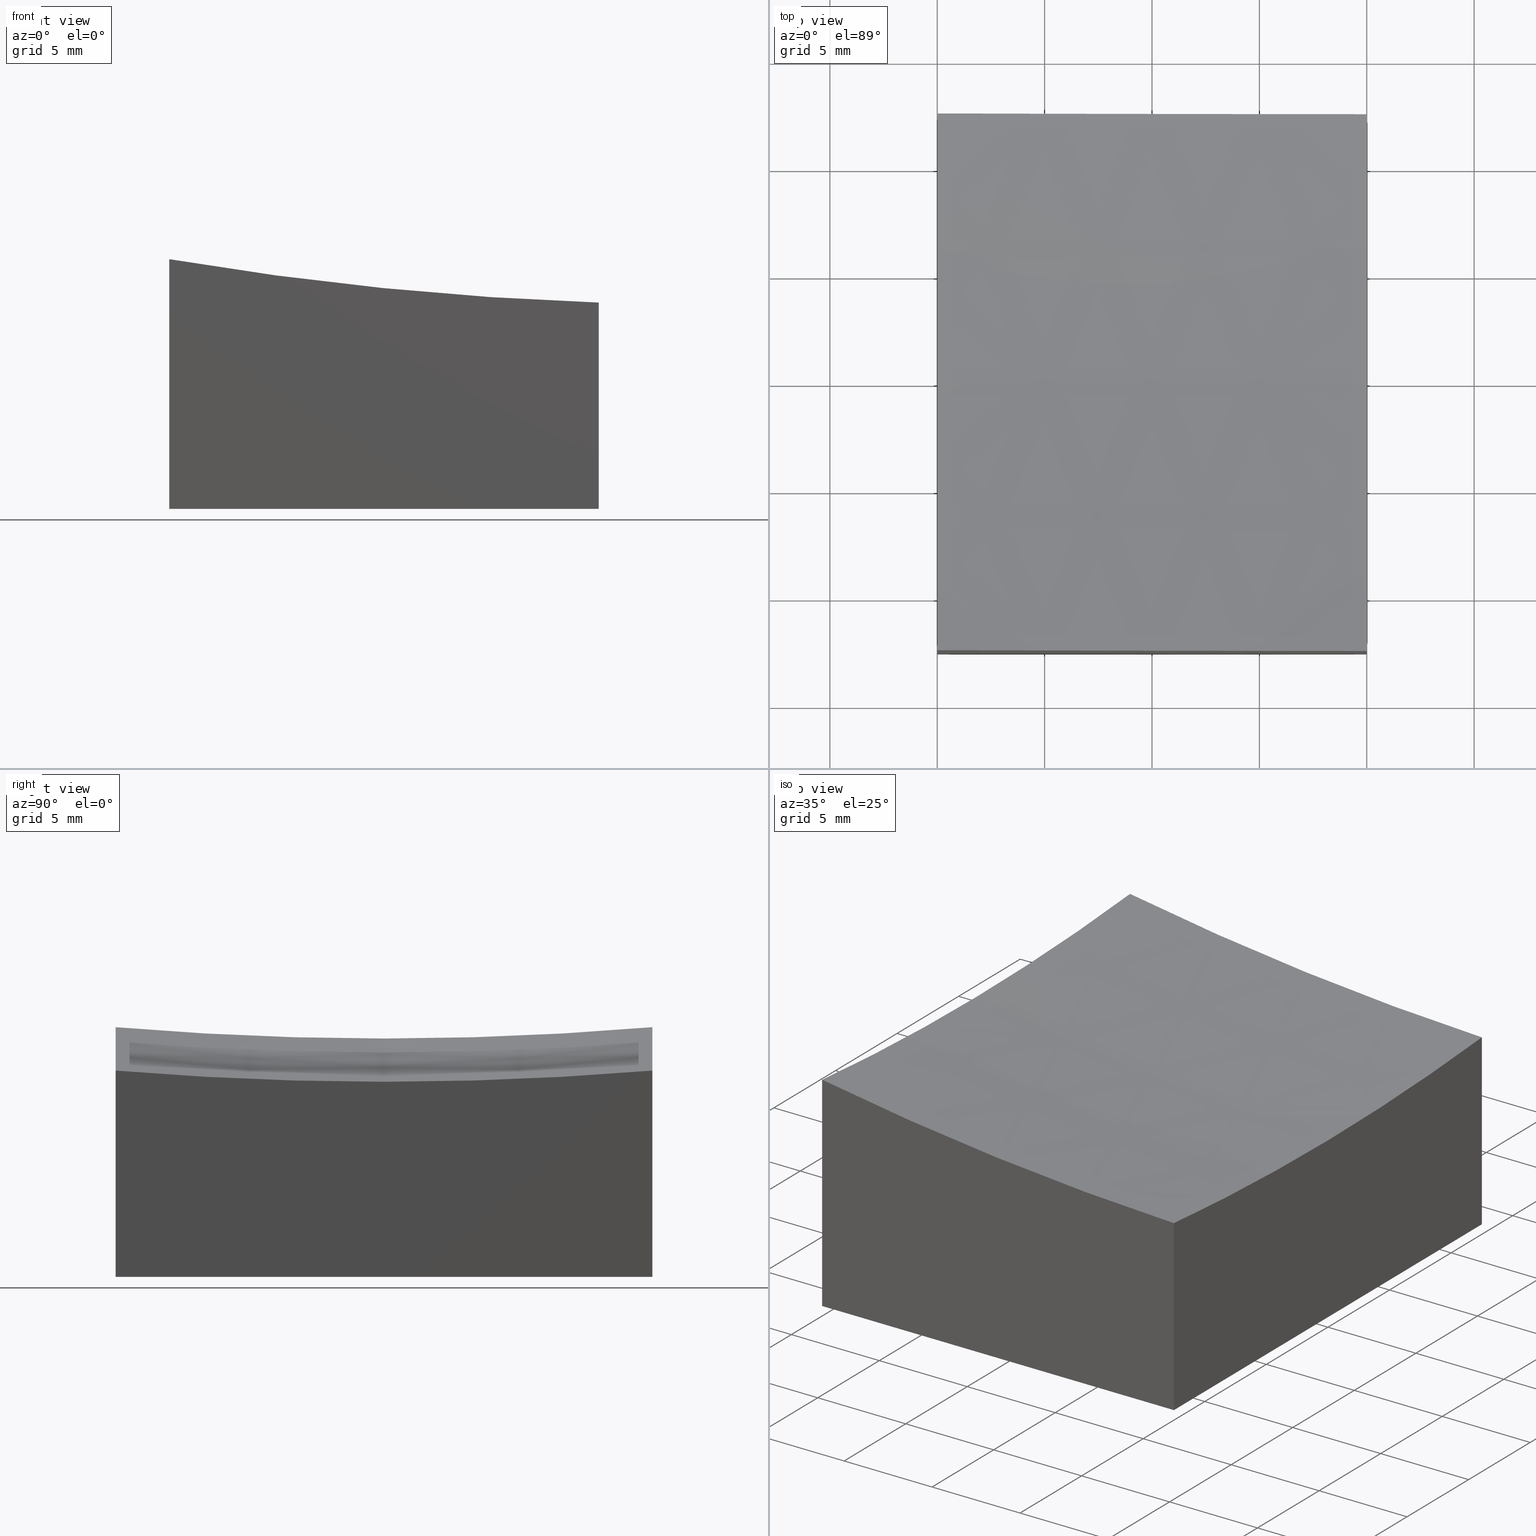
[diagram: canonical four-view strip — front | top / right | iso, engineering-drawing reading convention]
A machine part, canonical four-view strip (front | top / right | iso — engineering-drawing reading convention). The complete STEP part file that produces these views, byte-faithful:
ISO-10303-21;
HEADER;
FILE_DESCRIPTION (( 'STEP AP203' ),
    '1' );
FILE_NAME ('270636.step',
    '2024-12-24T02:21:21',
    ( '' ),
    ( '' ),
    'SwSTEP 2.0',
    'SolidWorks 2020',
    '' );
FILE_SCHEMA (( 'CONFIG_CONTROL_DESIGN' ));
ENDSEC;

DATA;
#1 = CARTESIAN_POINT ( 'NONE',  ( 10.00000000000000178, 12.50000000000000000, -10.00000000000000000 ) ) ;
#2 = EDGE_CURVE ( 'NONE', #259, #260, #177, .T. ) ;
#3 = COORDINATED_UNIVERSAL_TIME_OFFSET ( 8, 0, .AHEAD. ) ;
#4 = DIRECTION ( 'NONE',  ( 1.000000000000000000, 0.000000000000000000, 0.000000000000000000 ) ) ;
#5 = SHAPE_DEFINITION_REPRESENTATION ( #112, #170 ) ;
#6 = EDGE_CURVE ( 'NONE', #89, #10, #127, .T. ) ;
#7 = CARTESIAN_POINT ( 'NONE',  ( 10.00000000000000178, -12.50000000000000000, 10.00000000000000000 ) ) ;
#8 = CC_DESIGN_APPROVAL ( #105, ( #49 ) ) ;
#9 = CC_DESIGN_PERSON_AND_ORGANIZATION_ASSIGNMENT ( #62, #24, ( #263 ) ) ;
#10 = VERTEX_POINT ( 'NONE', #186 ) ;
#11 = CLOSED_SHELL ( 'NONE', ( #238, #257, #138, #275, #201, #253, #108 ) ) ;
#12 = PERSON_AND_ORGANIZATION_ROLE ( 'design_owner' ) ;
#13 = EDGE_CURVE ( 'NONE', #243, #151, #273, .T. ) ;
#14 = DIRECTION ( 'NONE',  ( 1.000000000000000000, 1.734723475976807094E-16, -0.000000000000000000 ) ) ;
#15 = DIRECTION ( 'NONE',  ( 1.734723475976807094E-16, -1.000000000000000000, 0.000000000000000000 ) ) ;
#16 = COORDINATED_UNIVERSAL_TIME_OFFSET ( 8, 0, .AHEAD. ) ;
#17 = LINE ( 'NONE', #1, #175 ) ;
#18 = PERSON_AND_ORGANIZATION ( #204, #225 ) ;
#19 = CC_DESIGN_DATE_AND_TIME_ASSIGNMENT ( #83, #145, ( #263 ) ) ;
#20 = DIRECTION ( 'NONE',  ( 1.734723475976807094E-16, -1.000000000000000000, 0.000000000000000000 ) ) ;
#21 = APPROVAL_STATUS ( 'not_yet_approved' ) ;
#22 = CARTESIAN_POINT ( 'NONE',  ( -9.999999999999998224, 12.49999999999999645, -10.00000000000000000 ) ) ;
#23 = LINE ( 'NONE', #53, #196 ) ;
#24 = PERSON_AND_ORGANIZATION_ROLE ( 'classification_officer' ) ;
#25 = APPROVAL_ROLE ( '' ) ;
#26 = EDGE_LOOP ( 'NONE', ( #246, #91, #72, #104 ) ) ;
#27 = ORIENTED_EDGE ( 'NONE', *, *, #81, .F. ) ;
#28 = ORIENTED_EDGE ( 'NONE', *, *, #13, .F. ) ;
#29 = AXIS2_PLACEMENT_3D ( 'NONE', #118, #143, #206 ) ;
#30 = EDGE_LOOP ( 'NONE', ( #85, #68, #195, #218, #159 ) ) ;
#31 = VERTEX_POINT ( 'NONE', #200 ) ;
#32 = CARTESIAN_POINT ( 'NONE',  ( 10.00000000000000178, -12.50000000000000000, 10.00000000000000000 ) ) ;
#33 = CARTESIAN_POINT ( 'NONE',  ( 10.00000000000000178, 0.000000000000000000, 149.0000000000000000 ) ) ;
#34 = DIRECTION ( 'NONE',  ( 1.000000000000000000, 0.000000000000000000, 0.000000000000000000 ) ) ;
#35 = CARTESIAN_POINT ( 'NONE',  ( 10.00000000000000178, -12.50000000000000000, -10.00000000000000000 ) ) ;
#36 = EDGE_CURVE ( 'NONE', #89, #259, #84, .T. ) ;
#37 = CALENDAR_DATE ( 2024, 24, 12 ) ;
#38 = CARTESIAN_POINT ( 'NONE',  ( -9.999999999999998224, 12.49999999999999645, 10.00000000000000000 ) ) ;
#39 = DIRECTION ( 'NONE',  ( 0.000000000000000000, 0.000000000000000000, -1.000000000000000000 ) ) ;
#40 = DIRECTION ( 'NONE',  ( 0.000000000000000000, -0.000000000000000000, 1.000000000000000000 ) ) ;
#41 = CC_DESIGN_PERSON_AND_ORGANIZATION_ASSIGNMENT ( #142, #115, ( #49 ) ) ;
#42 = COORDINATED_UNIVERSAL_TIME_OFFSET ( 8, 0, .AHEAD. ) ;
#43 = APPROVAL_DATE_TIME ( #232, #239 ) ;
#44 = DIRECTION ( 'NONE',  ( 0.000000000000000000, 0.000000000000000000, -1.000000000000000000 ) ) ;
#45 = ORIENTED_EDGE ( 'NONE', *, *, #54, .F. ) ;
#46 = CC_DESIGN_DATE_AND_TIME_ASSIGNMENT ( #268, #230, ( #49 ) ) ;
#47 = APPROVAL_PERSON_ORGANIZATION ( #71, #66, #157 ) ;
#48 =( NAMED_UNIT ( * ) SI_UNIT ( $, .STERADIAN. ) SOLID_ANGLE_UNIT ( ) );
#49 = PRODUCT_DEFINITION ( 'δ֪', '', #154, #125 ) ;
#50 = COORDINATED_UNIVERSAL_TIME_OFFSET ( 8, 0, .AHEAD. ) ;
#51 = DIRECTION ( 'NONE',  ( -1.000000000000000000, 0.000000000000000000, 0.000000000000000000 ) ) ;
#52 = DIRECTION ( 'NONE',  ( -1.000000000000000000, 0.000000000000000000, 0.000000000000000000 ) ) ;
#53 = CARTESIAN_POINT ( 'NONE',  ( 10.00000000000000178, 12.50000000000000000, 10.00000000000000000 ) ) ;
#54 = EDGE_CURVE ( 'NONE', #156, #243, #17, .T. ) ;
#55 = DIRECTION ( 'NONE',  ( -1.000000000000000000, 0.000000000000000000, 0.000000000000000000 ) ) ;
#56 = CALENDAR_DATE ( 2024, 24, 12 ) ;
#57 = CARTESIAN_POINT ( 'NONE',  ( 10.00000000000000178, 12.50000000000000000, -0.3946116832866386481 ) ) ;
#58 = VECTOR ( 'NONE', #120, 1000.000000000000000 ) ;
#59 = CARTESIAN_POINT ( 'NONE',  ( -9.999999999999998224, 0.000000000000000000, 149.0000000000000000 ) ) ;
#60 = CC_DESIGN_PERSON_AND_ORGANIZATION_ASSIGNMENT ( #256, #121, ( #154 ) ) ;
#61 = FACE_OUTER_BOUND ( 'NONE', #30, .T. ) ;
#62 = PERSON_AND_ORGANIZATION ( #204, #225 ) ;
#63 = PERSON_AND_ORGANIZATION ( #204, #225 ) ;
#64 = VECTOR ( 'NONE', #160, 1000.000000000000000 ) ;
#65 = CC_DESIGN_APPROVAL ( #66, ( #154 ) ) ;
#66 = APPROVAL ( #21, 'δָ��' ) ;
#67 = ORIENTED_EDGE ( 'NONE', *, *, #36, .F. ) ;
#68 = ORIENTED_EDGE ( 'NONE', *, *, #2, .T. ) ;
#69 = PRODUCT_RELATED_PRODUCT_CATEGORY ( 'detail', '', ( #240 ) ) ;
#70 = EDGE_LOOP ( 'NONE', ( #236, #269, #220, #126 ) ) ;
#71 = PERSON_AND_ORGANIZATION ( #204, #225 ) ;
#72 = ORIENTED_EDGE ( 'NONE', *, *, #148, .F. ) ;
#73 = CARTESIAN_POINT ( 'NONE',  ( -10.00000000000000000, -12.50000000000000355, 1.627173468105036491 ) ) ;
#74 = DIRECTION ( 'NONE',  ( -0.000000000000000000, -0.000000000000000000, -1.000000000000000000 ) ) ;
#75 = VECTOR ( 'NONE', #164, 1000.000000000000000 ) ;
#76 = CARTESIAN_POINT ( 'NONE',  ( 0.000000000000000000, 0.000000000000000000, 0.000000000000000000 ) ) ;
#77 = CARTESIAN_POINT ( 'NONE',  ( -9.999999999999998224, -12.50000000000000355, -10.00000000000000000 ) ) ;
#78 = APPLICATION_PROTOCOL_DEFINITION ( 'international standard', 'config_control_design', 1994, #153 ) ;
#79 = DIRECTION ( 'NONE',  ( -1.734723475976807094E-16, 1.000000000000000000, 0.000000000000000000 ) ) ;
#80 = FACE_OUTER_BOUND ( 'NONE', #26, .T. ) ;
#81 = EDGE_CURVE ( 'NONE', #10, #156, #226, .T. ) ;
#82 = SECURITY_CLASSIFICATION_LEVEL ( 'unclassified' ) ;
#83 = DATE_AND_TIME ( #171, #132 ) ;
#84 = CIRCLE ( 'NONE', #144, 149.4782592887674753 ) ;
#85 = ORIENTED_EDGE ( 'NONE', *, *, #264, .F. ) ;
#86 = APPLICATION_CONTEXT ( 'configuration controlled 3d designs of mechanical parts and assemblies' ) ;
#87 = CC_DESIGN_PERSON_AND_ORGANIZATION_ASSIGNMENT ( #63, #216, ( #154 ) ) ;
#88 = CC_DESIGN_SECURITY_CLASSIFICATION ( #263, ( #154 ) ) ;
#89 = VERTEX_POINT ( 'NONE', #189 ) ;
#90 = APPLICATION_PROTOCOL_DEFINITION ( 'international standard', 'config_control_design', 1994, #86 ) ;
#91 = ORIENTED_EDGE ( 'NONE', *, *, #194, .T. ) ;
#92 = DATE_AND_TIME ( #56, #102 ) ;
#93 = FACE_OUTER_BOUND ( 'NONE', #70, .T. ) ;
#94 = CARTESIAN_POINT ( 'NONE',  ( -9.999999999999998224, -12.50000000000000355, 10.00000000000000000 ) ) ;
#95 = DIRECTION ( 'NONE',  ( -1.000000000000000000, -1.740778375628798863E-16, 0.000000000000000000 ) ) ;
#96 = AXIS2_PLACEMENT_3D ( 'NONE', #59, #146, #39 ) ;
#97 = CARTESIAN_POINT ( 'NONE',  ( 10.00000000000000178, 12.50000000000000000, -10.00000000000000000 ) ) ;
#98 = SPHERICAL_SURFACE ( 'NONE', #272, 150.0000000000000284 ) ;
#99 = EDGE_CURVE ( 'NONE', #31, #89, #101, .T. ) ;
#100 = DIRECTION ( 'NONE',  ( -0.000000000000000000, -0.000000000000000000, -1.000000000000000000 ) ) ;
#101 = CIRCLE ( 'NONE', #217, 149.9166435056495175 ) ;
#102 = LOCAL_TIME ( 10, 21, 21.00000000000000000, #16 ) ;
#103 = EDGE_CURVE ( 'NONE', #174, #176, #191, .T. ) ;
#104 = ORIENTED_EDGE ( 'NONE', *, *, #103, .F. ) ;
#105 = APPROVAL ( #224, 'δָ��' ) ;
#106 = EDGE_LOOP ( 'NONE', ( #28, #45, #27, #133 ) ) ;
#107 = AXIS2_PLACEMENT_3D ( 'NONE', #183, #15, #249 ) ;
#108 = ADVANCED_FACE ( 'NONE', ( #122 ), #98, .F. ) ;
#109 = ORIENTED_EDGE ( 'NONE', *, *, #6, .T. ) ;
#110 = ORIENTED_EDGE ( 'NONE', *, *, #36, .T. ) ;
#111 = AXIS2_PLACEMENT_3D ( 'NONE', #94, #248, #117 ) ;
#112 = PRODUCT_DEFINITION_SHAPE ( 'NONE', 'NONE',  #49 ) ;
#113 = DATE_AND_TIME ( #136, #129 ) ;
#114 = DIRECTION ( 'NONE',  ( -0.000000000000000000, -0.000000000000000000, -1.000000000000000000 ) ) ;
#115 = PERSON_AND_ORGANIZATION_ROLE ( 'creator' ) ;
#116 = FACE_OUTER_BOUND ( 'NONE', #221, .T. ) ;
#117 = DIRECTION ( 'NONE',  ( 0.000000000000000000, 0.000000000000000000, -1.000000000000000000 ) ) ;
#118 = CARTESIAN_POINT ( 'NONE',  ( 15.00000000000001954, 0.000000000000000000, 149.0000000000000000 ) ) ;
#119 = AXIS2_PLACEMENT_3D ( 'NONE', #227, #79, #203 ) ;
#120 = DIRECTION ( 'NONE',  ( 0.000000000000000000, 1.000000000000000000, 0.000000000000000000 ) ) ;
#121 = PERSON_AND_ORGANIZATION_ROLE ( 'creator' ) ;
#122 = FACE_OUTER_BOUND ( 'NONE', #193, .T. ) ;
#123 = PLANE ( 'NONE',  #124 ) ;
#124 = AXIS2_PLACEMENT_3D ( 'NONE', #234, #40, #255 ) ;
#125 = DESIGN_CONTEXT ( 'detailed design', #86, 'design' ) ;
#126 = ORIENTED_EDGE ( 'NONE', *, *, #54, .T. ) ;
#127 = LINE ( 'NONE', #7, #266 ) ;
#128 = AXIS2_PLACEMENT_3D ( 'NONE', #33, #210, #165 ) ;
#129 = LOCAL_TIME ( 10, 21, 21.00000000000000000, #50 ) ;
#130 = ORIENTED_EDGE ( 'NONE', *, *, #6, .F. ) ;
#131 =( GEOMETRIC_REPRESENTATION_CONTEXT ( 3 ) GLOBAL_UNCERTAINTY_ASSIGNED_CONTEXT ( ( #162 ) ) GLOBAL_UNIT_ASSIGNED_CONTEXT ( ( #205, #276, #48 ) ) REPRESENTATION_CONTEXT ( 'NONE', 'WORKASPACE' ) );
#132 = LOCAL_TIME ( 10, 21, 21.00000000000000000, #3 ) ;
#133 = ORIENTED_EDGE ( 'NONE', *, *, #261, .F. ) ;
#134 = PLANE ( 'NONE',  #111 ) ;
#135 = ORIENTED_EDGE ( 'NONE', *, *, #81, .T. ) ;
#136 = CALENDAR_DATE ( 2024, 24, 12 ) ;
#137 = DIRECTION ( 'NONE',  ( 1.000000000000000000, 1.734723475976807094E-16, 0.000000000000000000 ) ) ;
#138 = ADVANCED_FACE ( 'NONE', ( #116 ), #141, .F. ) ;
#139 = CARTESIAN_POINT ( 'NONE',  ( 15.00000000000001954, 0.000000000000000000, 149.0000000000000000 ) ) ;
#140 = DIRECTION ( 'NONE',  ( 0.000000000000000000, 0.000000000000000000, 1.000000000000000000 ) ) ;
#141 = PLANE ( 'NONE',  #119 ) ;
#142 = PERSON_AND_ORGANIZATION ( #204, #225 ) ;
#143 = DIRECTION ( 'NONE',  ( 0.000000000000000000, -1.000000000000000000, 0.000000000000000000 ) ) ;
#144 = AXIS2_PLACEMENT_3D ( 'NONE', #252, #181, #95 ) ;
#145 = DATE_TIME_ROLE ( 'classification_date' ) ;
#146 = DIRECTION ( 'NONE',  ( 1.000000000000000000, 0.000000000000000000, 0.000000000000000000 ) ) ;
#147 = FACE_OUTER_BOUND ( 'NONE', #106, .T. ) ;
#148 = EDGE_CURVE ( 'NONE', #176, #31, #190, .T. ) ;
#149 = CIRCLE ( 'NONE', #29, 150.0000000000000284 ) ;
#150 = CALENDAR_DATE ( 2024, 24, 12 ) ;
#151 = VERTEX_POINT ( 'NONE', #229 ) ;
#152 = ORIENTED_EDGE ( 'NONE', *, *, #99, .F. ) ;
#153 = APPLICATION_CONTEXT ( 'configuration controlled 3d designs of mechanical parts and assemblies' ) ;
#154 = PRODUCT_DEFINITION_FORMATION_WITH_SPECIFIED_SOURCE ( '�κ�', '', #240, .NOT_KNOWN. ) ;
#155 = ORIENTED_EDGE ( 'NONE', *, *, #148, .T. ) ;
#156 = VERTEX_POINT ( 'NONE', #97 ) ;
#157 = APPROVAL_ROLE ( '' ) ;
#158 = EDGE_CURVE ( 'NONE', #174, #243, #188, .T. ) ;
#159 = ORIENTED_EDGE ( 'NONE', *, *, #13, .T. ) ;
#160 = DIRECTION ( 'NONE',  ( -0.000000000000000000, -0.000000000000000000, -1.000000000000000000 ) ) ;
#161 = CARTESIAN_POINT ( 'NONE',  ( -9.999999999999996447, 12.49999999999999645, 1.627173468105036491 ) ) ;
#162 = UNCERTAINTY_MEASURE_WITH_UNIT (LENGTH_MEASURE( 1.000000000000000082E-05 ), #205, 'distance_accuracy_value', 'NONE');
#163 = CARTESIAN_POINT ( 'NONE',  ( 10.00000000000000178, -12.50000000000000000, -10.00000000000000000 ) ) ;
#164 = DIRECTION ( 'NONE',  ( -0.000000000000000000, -1.000000000000000000, -0.000000000000000000 ) ) ;
#165 = DIRECTION ( 'NONE',  ( 0.000000000000000000, 0.000000000000000000, 1.000000000000000000 ) ) ;
#166 = DIRECTION ( 'NONE',  ( 0.000000000000000000, 1.000000000000000000, -0.000000000000000000 ) ) ;
#167 = AXIS2_PLACEMENT_3D ( 'NONE', #231, #20, #137 ) ;
#168 = APPROVAL_STATUS ( 'not_yet_approved' ) ;
#169 = CARTESIAN_POINT ( 'NONE',  ( 15.00000000000001954, 0.000000000000000000, 149.0000000000000000 ) ) ;
#170 = ADVANCED_BREP_SHAPE_REPRESENTATION ( '270636', ( #179, #262 ), #131 ) ;
#171 = CALENDAR_DATE ( 2024, 24, 12 ) ;
#172 = LOCAL_TIME ( 10, 21, 21.00000000000000000, #42 ) ;
#173 = ORIENTED_EDGE ( 'NONE', *, *, #211, .F. ) ;
#174 = VERTEX_POINT ( 'NONE', #161 ) ;
#175 = VECTOR ( 'NONE', #251, 1000.000000000000000 ) ;
#176 = VERTEX_POINT ( 'NONE', #57 ) ;
#177 = CIRCLE ( 'NONE', #222, 147.9019945774904272 ) ;
#178 = APPROVAL_DATE_TIME ( #92, #105 ) ;
#179 = MANIFOLD_SOLID_BREP ( '�г�-��ת8', #11 ) ;
#180 = LINE ( 'NONE', #270, #64 ) ;
#181 = DIRECTION ( 'NONE',  ( -1.734723475976807094E-16, 1.000000000000000000, 0.000000000000000000 ) ) ;
#182 = VECTOR ( 'NONE', #14, 1000.000000000000000 ) ;
#183 = CARTESIAN_POINT ( 'NONE',  ( 15.00000000000001776, 12.50000000000000178, 149.0000000000000000 ) ) ;
#184 = LOCAL_TIME ( 10, 21, 21.00000000000000000, #202 ) ;
#185 = LINE ( 'NONE', #163, #182 ) ;
#186 = CARTESIAN_POINT ( 'NONE',  ( 10.00000000000000178, -12.50000000000000000, -10.00000000000000000 ) ) ;
#187 = DIRECTION ( 'NONE',  ( 0.000000000000000000, 0.000000000000000000, 1.000000000000000000 ) ) ;
#188 = LINE ( 'NONE', #38, #219 ) ;
#189 = CARTESIAN_POINT ( 'NONE',  ( 10.00000000000000178, -12.50000000000000000, -0.3946116832866386481 ) ) ;
#190 = CIRCLE ( 'NONE', #128, 149.9166435056495175 ) ;
#191 = CIRCLE ( 'NONE', #107, 149.4782592887674753 ) ;
#192 = ORIENTED_EDGE ( 'NONE', *, *, #194, .F. ) ;
#193 = EDGE_LOOP ( 'NONE', ( #192, #237, #67, #152 ) ) ;
#194 = EDGE_CURVE ( 'NONE', #260, #31, #149, .T. ) ;
#195 = ORIENTED_EDGE ( 'NONE', *, *, #245, .T. ) ;
#196 = VECTOR ( 'NONE', #74, 1000.000000000000000 ) ;
#197 = CARTESIAN_POINT ( 'NONE',  ( -9.999999999999998224, 0.000000000000000000, 1.098005422509568119 ) ) ;
#198 = ORIENTED_EDGE ( 'NONE', *, *, #99, .T. ) ;
#199 = APPROVAL_DATE_TIME ( #113, #66 ) ;
#200 = CARTESIAN_POINT ( 'NONE',  ( 10.00000000000000178, 0.000000000000000000, -0.9166435056495170208 ) ) ;
#201 = ADVANCED_FACE ( 'NONE', ( #93 ), #271, .F. ) ;
#202 = COORDINATED_UNIVERSAL_TIME_OFFSET ( 8, 0, .AHEAD. ) ;
#203 = DIRECTION ( 'NONE',  ( -1.000000000000000000, -1.734723475976807094E-16, 0.000000000000000000 ) ) ;
#204 = PERSON ( 'δָ��', 'δָ��', 'δָ��', ('δָ��'), ('δָ��'), ('δָ��') ) ;
#205 =( LENGTH_UNIT ( ) NAMED_UNIT ( * ) SI_UNIT ( .MILLI., .METRE. ) );
#206 = DIRECTION ( 'NONE',  ( 0.000000000000000000, 0.000000000000000000, -1.000000000000000000 ) ) ;
#207 = CC_DESIGN_APPROVAL ( #239, ( #263 ) ) ;
#208 = APPROVAL_ROLE ( '' ) ;
#209 = DIRECTION ( 'NONE',  ( 0.000000000000000000, 0.000000000000000000, 1.000000000000000000 ) ) ;
#210 = DIRECTION ( 'NONE',  ( -1.000000000000000000, 0.000000000000000000, 0.000000000000000000 ) ) ;
#211 = EDGE_CURVE ( 'NONE', #176, #156, #23, .T. ) ;
#212 = CIRCLE ( 'NONE', #96, 147.9019945774904272 ) ;
#213 = APPROVAL_PERSON_ORGANIZATION ( #18, #105, #208 ) ;
#214 = CC_DESIGN_PERSON_AND_ORGANIZATION_ASSIGNMENT ( #242, #12, ( #240 ) ) ;
#215 = CARTESIAN_POINT ( 'NONE',  ( -9.999999999999998224, 0.000000000000000000, 149.0000000000000000 ) ) ;
#216 = PERSON_AND_ORGANIZATION_ROLE ( 'design_supplier' ) ;
#217 = AXIS2_PLACEMENT_3D ( 'NONE', #274, #55, #209 ) ;
#218 = ORIENTED_EDGE ( 'NONE', *, *, #158, .T. ) ;
#219 = VECTOR ( 'NONE', #114, 1000.000000000000000 ) ;
#220 = ORIENTED_EDGE ( 'NONE', *, *, #211, .T. ) ;
#221 = EDGE_LOOP ( 'NONE', ( #130, #110, #265, #267 ) ) ;
#222 = AXIS2_PLACEMENT_3D ( 'NONE', #215, #4, #44 ) ;
#223 = AXIS2_PLACEMENT_3D ( 'NONE', #139, #166, #254 ) ;
#224 = APPROVAL_STATUS ( 'not_yet_approved' ) ;
#225 = ORGANIZATION ( 'δָ��', 'δָ��', '' ) ;
#226 = LINE ( 'NONE', #35, #58 ) ;
#227 = CARTESIAN_POINT ( 'NONE',  ( 10.00000000000000178, -12.50000000000000000, 10.00000000000000000 ) ) ;
#228 = MECHANICAL_CONTEXT ( 'NONE', #153, 'mechanical' ) ;
#229 = CARTESIAN_POINT ( 'NONE',  ( -9.999999999999998224, -12.50000000000000355, -10.00000000000000000 ) ) ;
#230 = DATE_TIME_ROLE ( 'creation_date' ) ;
#231 = CARTESIAN_POINT ( 'NONE',  ( 10.00000000000000178, 12.50000000000000000, 10.00000000000000000 ) ) ;
#232 = DATE_AND_TIME ( #150, #172 ) ;
#233 = DIRECTION ( 'NONE',  ( 0.000000000000000000, 1.000000000000000000, -0.000000000000000000 ) ) ;
#234 = CARTESIAN_POINT ( 'NONE',  ( 0.000000000000000000, 0.000000000000000000, -10.00000000000000000 ) ) ;
#235 = PERSON_AND_ORGANIZATION ( #204, #225 ) ;
#236 = ORIENTED_EDGE ( 'NONE', *, *, #158, .F. ) ;
#237 = ORIENTED_EDGE ( 'NONE', *, *, #2, .F. ) ;
#238 = ADVANCED_FACE ( 'NONE', ( #80 ), #277, .F. ) ;
#239 = APPROVAL ( #168, 'δָ��' ) ;
#240 = PRODUCT ( '270636', '270636', '', ( #228 ) ) ;
#241 = EDGE_LOOP ( 'NONE', ( #173, #155, #198, #109, #135 ) ) ;
#242 = PERSON_AND_ORGANIZATION ( #204, #225 ) ;
#243 = VERTEX_POINT ( 'NONE', #22 ) ;
#244 = FACE_OUTER_BOUND ( 'NONE', #241, .T. ) ;
#245 = EDGE_CURVE ( 'NONE', #260, #174, #212, .T. ) ;
#246 = ORIENTED_EDGE ( 'NONE', *, *, #245, .F. ) ;
#247 = APPROVAL_PERSON_ORGANIZATION ( #235, #239, #25 ) ;
#248 = DIRECTION ( 'NONE',  ( 1.000000000000000000, 0.000000000000000000, 0.000000000000000000 ) ) ;
#249 = DIRECTION ( 'NONE',  ( 1.000000000000000000, 1.740778375628798863E-16, 0.000000000000000000 ) ) ;
#250 = PLANE ( 'NONE',  #258 ) ;
#251 = DIRECTION ( 'NONE',  ( -1.000000000000000000, -1.734723475976807094E-16, 0.000000000000000000 ) ) ;
#252 = CARTESIAN_POINT ( 'NONE',  ( 15.00000000000002132, -12.49999999999999822, 149.0000000000000000 ) ) ;
#253 = ADVANCED_FACE ( 'NONE', ( #147 ), #123, .F. ) ;
#254 = DIRECTION ( 'NONE',  ( -1.000000000000000000, 0.000000000000000000, 0.000000000000000000 ) ) ;
#255 = DIRECTION ( 'NONE',  ( 1.000000000000000000, 0.000000000000000000, -0.000000000000000000 ) ) ;
#256 = PERSON_AND_ORGANIZATION ( #204, #225 ) ;
#257 = ADVANCED_FACE ( 'NONE', ( #61 ), #134, .F. ) ;
#258 = AXIS2_PLACEMENT_3D ( 'NONE', #32, #52, #187 ) ;
#259 = VERTEX_POINT ( 'NONE', #73 ) ;
#260 = VERTEX_POINT ( 'NONE', #197 ) ;
#261 = EDGE_CURVE ( 'NONE', #151, #10, #185, .T. ) ;
#262 = AXIS2_PLACEMENT_3D ( 'NONE', #76, #140, #34 ) ;
#263 = SECURITY_CLASSIFICATION ( '', '', #82 ) ;
#264 = EDGE_CURVE ( 'NONE', #259, #151, #180, .T. ) ;
#265 = ORIENTED_EDGE ( 'NONE', *, *, #264, .T. ) ;
#266 = VECTOR ( 'NONE', #100, 1000.000000000000000 ) ;
#267 = ORIENTED_EDGE ( 'NONE', *, *, #261, .T. ) ;
#268 = DATE_AND_TIME ( #37, #184 ) ;
#269 = ORIENTED_EDGE ( 'NONE', *, *, #103, .T. ) ;
#270 = CARTESIAN_POINT ( 'NONE',  ( -9.999999999999998224, -12.50000000000000355, 10.00000000000000000 ) ) ;
#271 = PLANE ( 'NONE',  #167 ) ;
#272 = AXIS2_PLACEMENT_3D ( 'NONE', #169, #233, #51 ) ;
#273 = LINE ( 'NONE', #77, #75 ) ;
#274 = CARTESIAN_POINT ( 'NONE',  ( 10.00000000000000178, 0.000000000000000000, 149.0000000000000000 ) ) ;
#275 = ADVANCED_FACE ( 'NONE', ( #244 ), #250, .F. ) ;
#276 =( NAMED_UNIT ( * ) PLANE_ANGLE_UNIT ( ) SI_UNIT ( $, .RADIAN. ) );
#277 = SPHERICAL_SURFACE ( 'NONE', #223, 150.0000000000000284 ) ;
ENDSEC;
END-ISO-10303-21;
